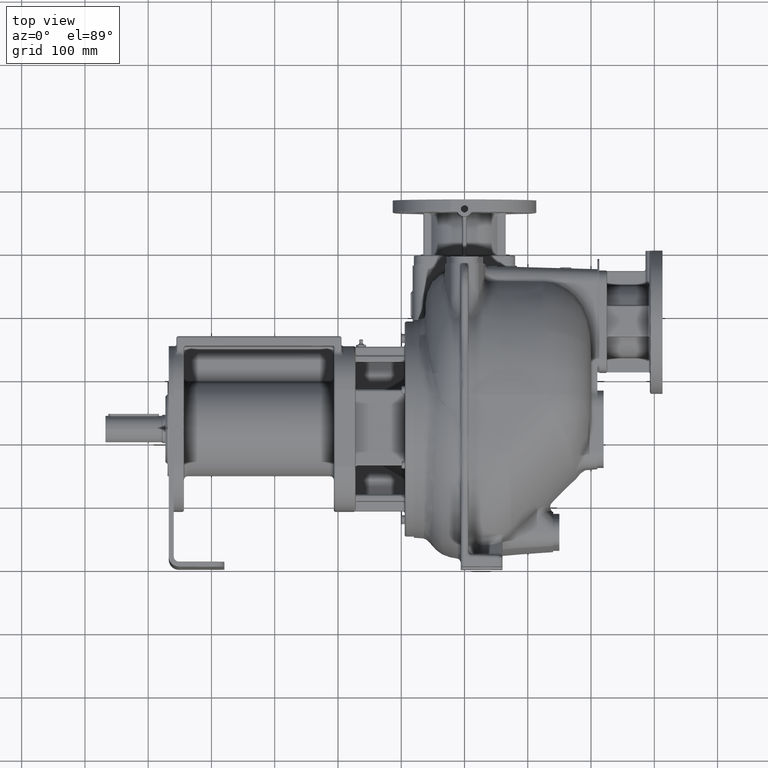
[diagram: clean part render]
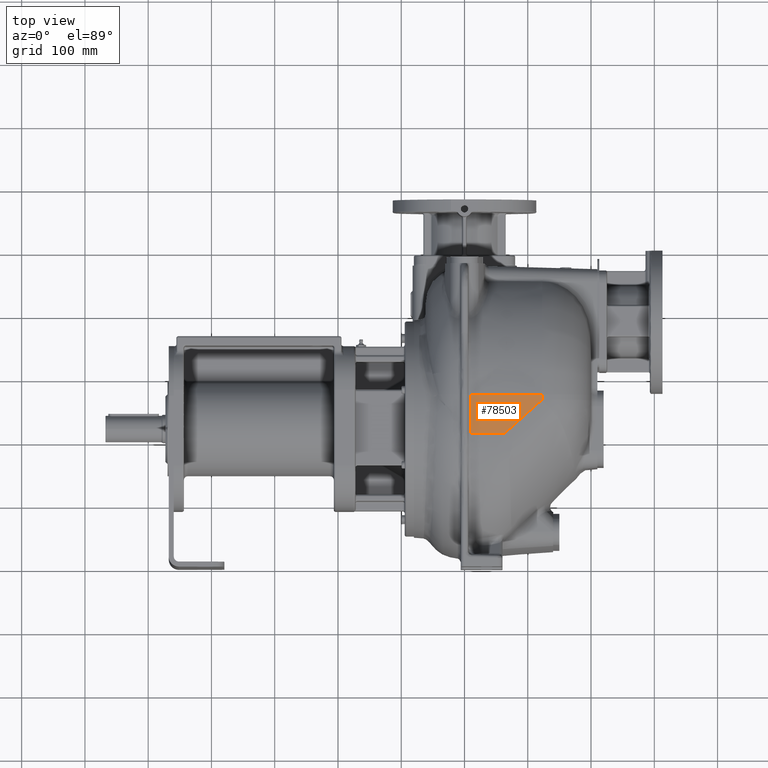
[diagram: same view with one face highlighted and labeled with its STEP entity id]
A machine part, top view. The second image highlights one B-rep face of the part: STEP entity #78503.
In plain terms, the highlighted planar face has unit normal (0.0349, 0, 0.9994).
Its self-contained STEP definition (entity closure, byte-faithful):
#8277=DIRECTION('',(0.E0,1.E0,6.875328304912E-13));
#8278=VECTOR('',#8277,6.242142823819E1);
#8279=CARTESIAN_POINT('',(9.895805077269E0,2.094463961597E2,1.875498523223E2));
#8280=LINE('',#8279,#8278);
#8281=DIRECTION('',(9.993908270187E-1,-4.979618670390E-12,-3.489949671322E-2));
#8282=VECTOR('',#8281,1.129649698664E2);
#8283=CARTESIAN_POINT('',(9.895805077269E0,2.718678243979E2,1.875498523223E2));
#8284=LINE('',#8283,#8282);
#8285=DIRECTION('',(1.360312760388E-6,-9.999999999991E-1,-4.735853704184E-8));
#8286=VECTOR('',#8285,8.383377787656E0);
#8287=CARTESIAN_POINT('',(1.227919597362E2,2.718678243973E2,1.836074317278E2));
#8288=LINE('',#8287,#8286);
#8289=CARTESIAN_POINT('',(1.227919711402E2,2.634844466097E2,1.836074313307E2));
#8290=CARTESIAN_POINT('',(1.210614996257E2,2.619002753082E2,1.836678607276E2));
#8291=CARTESIAN_POINT('',(1.176162904131E2,2.587497021428E2,1.837881700844E2));
#8292=CARTESIAN_POINT('',(1.125027435768E2,2.540844376949E2,1.839667390747E2));
#8293=CARTESIAN_POINT('',(1.074214660670E2,2.494600182540E2,1.841441811954E2));
#8294=CARTESIAN_POINT('',(1.023583387602E2,2.448643118481E2,1.843209894970E2));
#8295=CARTESIAN_POINT('',(9.729601756668E1,2.402829984441E2,1.844977696485E2));
#8296=CARTESIAN_POINT('',(9.226498133326E1,2.357449514801E2,1.846734573051E2));
#8297=CARTESIAN_POINT('',(8.729728257195E1,2.312800453976E2,1.848469331684E2));
#8298=CARTESIAN_POINT('',(8.236870719845E1,2.268670419581E2,1.850190428130E2));
#8299=CARTESIAN_POINT('',(7.745368541062E1,2.224853281233E2,1.851906791559E2));
#8300=CARTESIAN_POINT('',(7.253853108328E1,2.181263932241E2,1.853623201271E2));
#8301=CARTESIAN_POINT('',(6.761149499069E1,2.137833509107E2,1.855343760188E2));
#8302=CARTESIAN_POINT('',(6.430710277307E1,2.108908064910E2,1.856497679377E2));
#8303=CARTESIAN_POINT('',(6.265051926820E1,2.094463961597E2,1.857076171085E2));
#48856=DIRECTION('',(9.993908270191E-1,2.541360515868E-13,-3.489949670169E-2));
#48857=VECTOR('',#48856,5.278687052620E1);
#48858=CARTESIAN_POINT('',(9.895805077269E0,2.094463961597E2,1.875498523223E2));
#48859=LINE('',#48858,#48857);
#63536=CARTESIAN_POINT('',(1.227919597362E2,2.718678243973E2,1.836074317278E2));
#63537=CARTESIAN_POINT('',(1.227919711402E2,2.634844466097E2,1.836074313307E2));
#63538=VERTEX_POINT('',#63536);
#63539=VERTEX_POINT('',#63537);
#63971=CARTESIAN_POINT('',(9.895805077271E0,2.718678243979E2,1.875498523223E2));
#63972=VERTEX_POINT('',#63971);
#63975=CARTESIAN_POINT('',(9.895805077269E0,2.094463961597E2,1.875498523223E2));
#63976=VERTEX_POINT('',#63975);
#64255=VERTEX_POINT('',#8303);
#78488=CARTESIAN_POINT('',(0.E0,2.718678243979E2,1.878954214504E2));
#78489=DIRECTION('',(3.489949670250E-2,0.E0,9.993908270191E-1));
#78490=DIRECTION('',(0.E0,-1.E0,0.E0));
#78491=AXIS2_PLACEMENT_3D('',#78488,#78489,#78490);
#78492=PLANE('',#78491);
#78493=ORIENTED_EDGE('',*,*,#78478,.T.);
#78494=ORIENTED_EDGE('',*,*,#78381,.T.);
#78496=ORIENTED_EDGE('',*,*,#78495,.T.);
#78498=ORIENTED_EDGE('',*,*,#78497,.T.);
#78500=ORIENTED_EDGE('',*,*,#78499,.F.);
#78501=EDGE_LOOP('',(#78493,#78494,#78496,#78498,#78500));
#78502=FACE_OUTER_BOUND('',#78501,.F.);
#78503=ADVANCED_FACE('',(#78502),#78492,.T.);
#8304=B_SPLINE_CURVE_WITH_KNOTS('',3,(#8289,#8290,#8291,#8292,#8293,#8294,#8295,
#8296,#8297,#8298,#8299,#8300,#8301,#8302,#8303),.UNSPECIFIED.,.F.,.F.,(4,1,1,1,
1,1,1,1,1,1,1,1,4),(0.E0,8.333333333333E-2,1.666666666667E-1,2.5E-1,
3.333333333333E-1,4.166666666667E-1,5.E-1,5.833333333333E-1,6.666666666667E-1,
7.5E-1,8.333333333333E-1,9.166666666667E-1,1.E0),.UNSPECIFIED.);
#78381=EDGE_CURVE('',#63972,#63538,#8284,.T.);
#78478=EDGE_CURVE('',#63976,#63972,#8280,.T.);
#78495=EDGE_CURVE('',#63538,#63539,#8288,.T.);
#78497=EDGE_CURVE('',#63539,#64255,#8304,.T.);
#78499=EDGE_CURVE('',#63976,#64255,#48859,.T.);